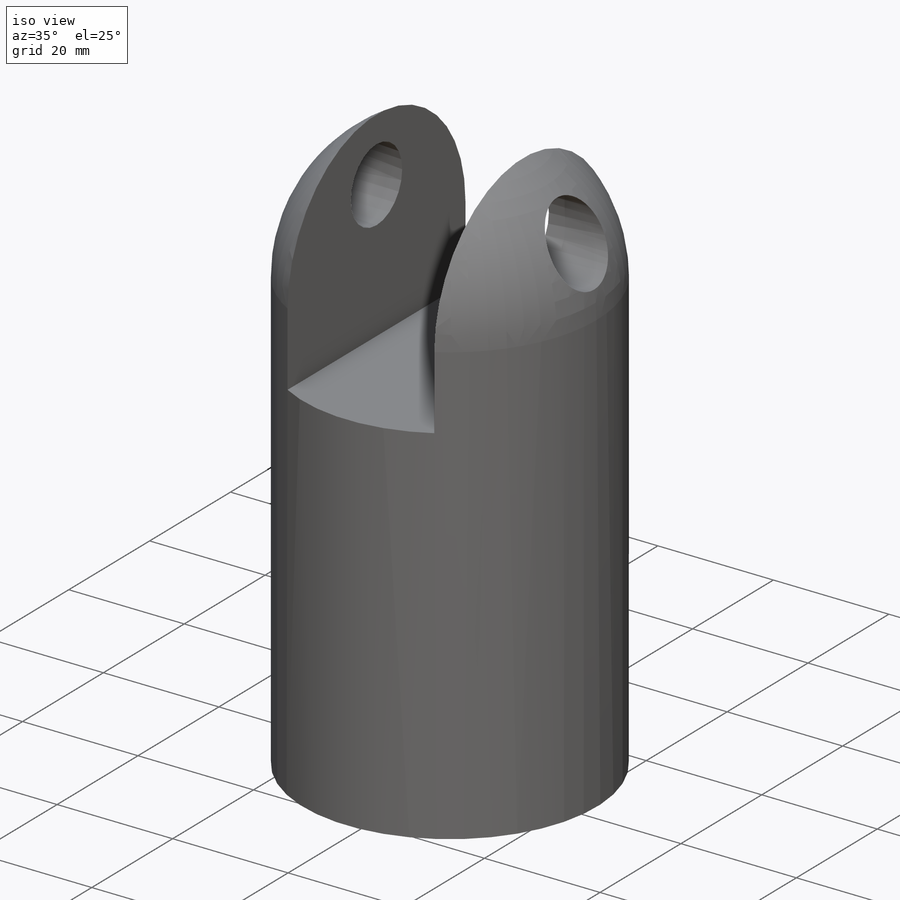
[diagram: iso view]
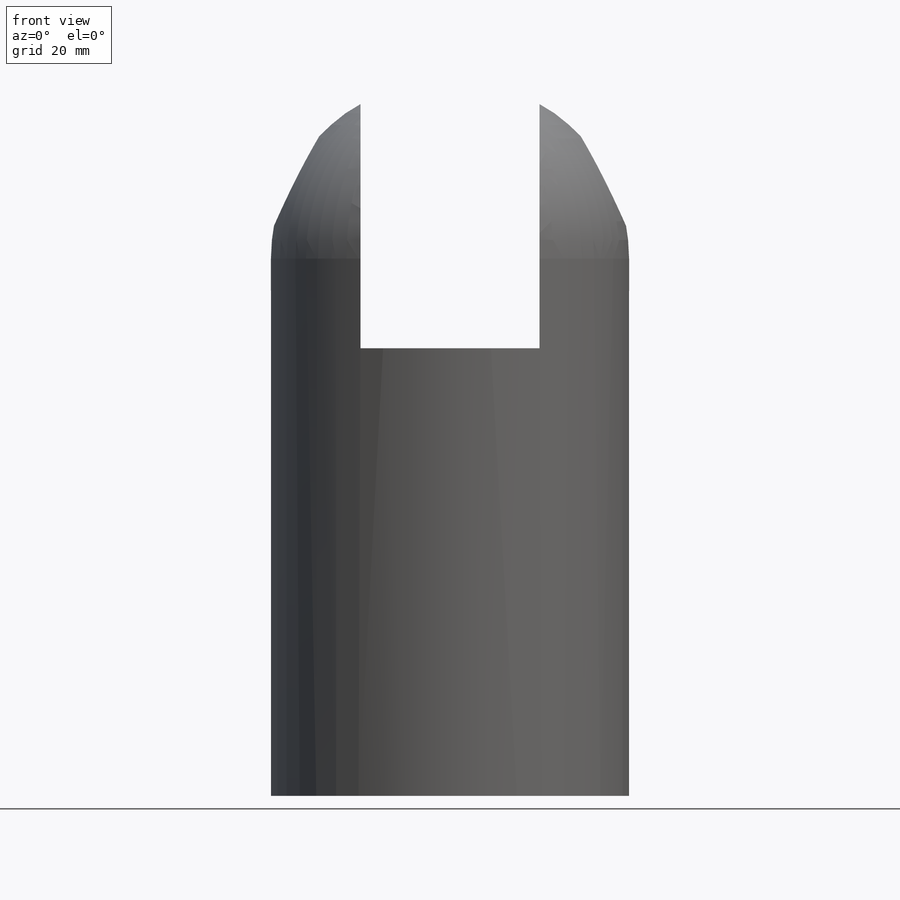
[diagram: front view]
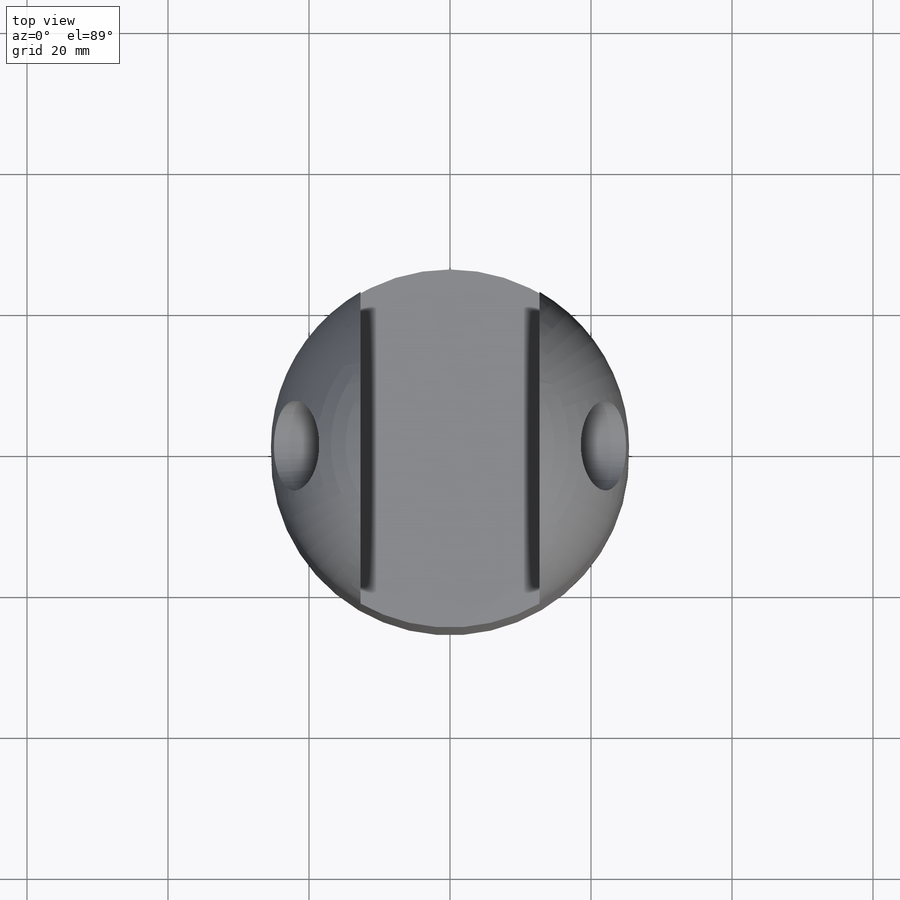
[diagram: top view]
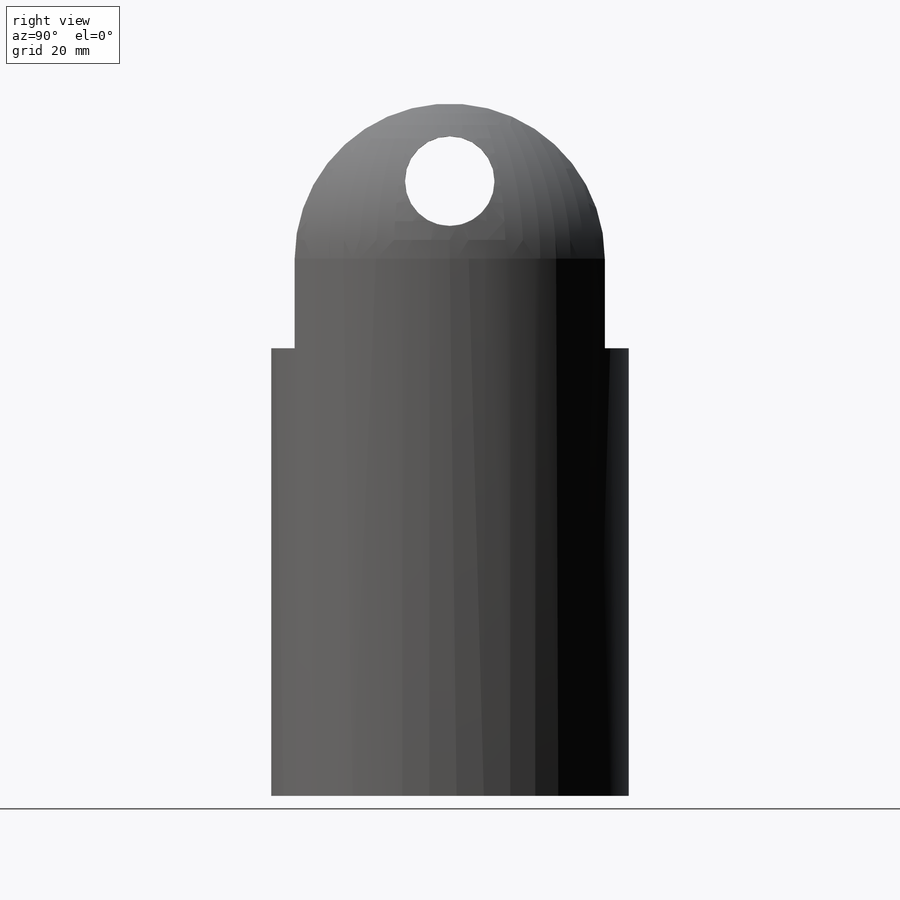
[diagram: right view]
SOLIDWORKS PART (.sldprt)
format: sldprt  version: not decoded by parser v0  size: 246,784 bytes
history: native  units: mm
features: sketch x5, cut_extrude x3, material x1, revolve x1 (+11 scaffold rows collapsed)
feature tree (21):
  scaffold x11  (default folders/planes/origin — collapsed)
  material  "6061-T6 (SS)"
  sketch  "Sketch1"  dims[D1=25.4mm D2=101.6mm]
  revolve  "Revolve3"  Angle=360deg
  sketch  "Sketch2"  dims[D1=25.4mm D2=38.1mm]
  cut_extrude  "Cut-Extrude1"  Depth=203.2mm
  sketch  "Sketch3"  dims[D1=12.7mm]
  cut_extrude  "Cut-Extrude2"  Depth=203.2mm
  sketch  "Sketch4"  dims[D1=12.7mm]
  cut_extrude  "Cut-Extrude3"  Depth=25.4mm
  sketch  "Sketch5"
decode coverage: 8 of 9 modeling features carry decoded parameters
note: suppression state not decoded; provenance and decode notes live in map.json
